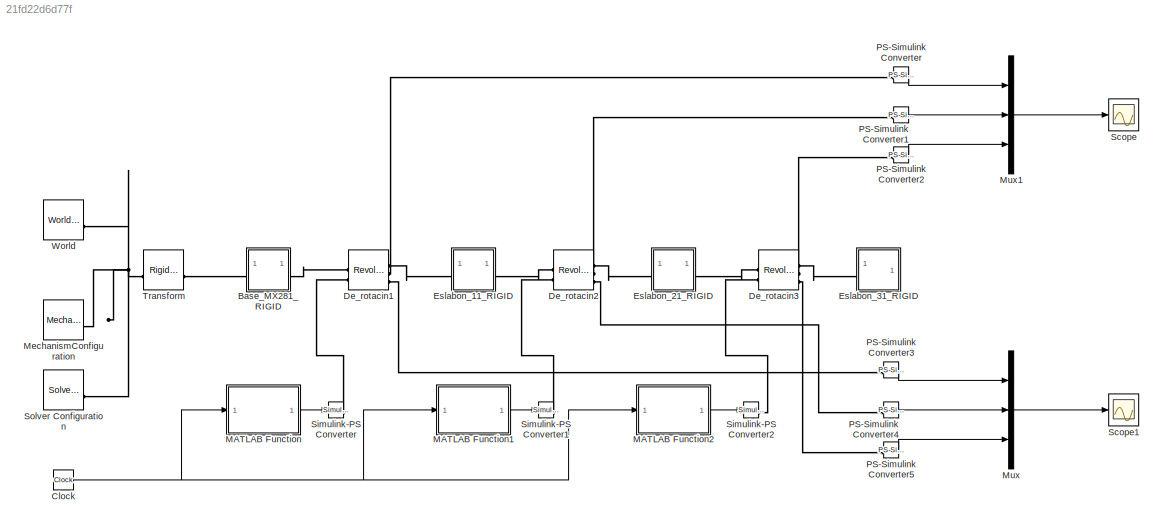
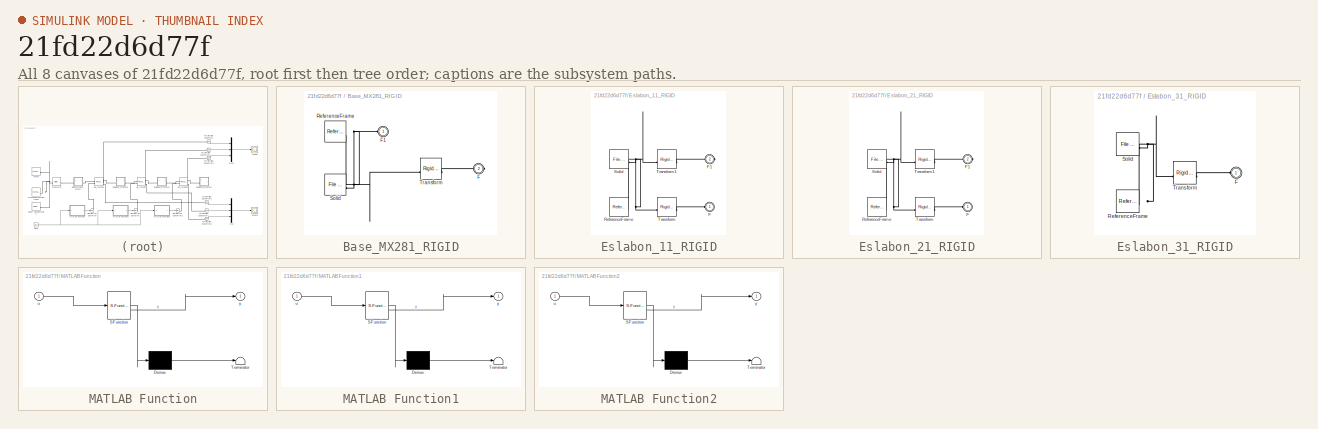
[diagram: thumbnail index - all 8 canvases of the model, root first then tree order]
MODEL slx_21fd22d6d77f
KIND model
CONFIG AbsTol = auto
CONFIG EnableMultiTasking = off
CONFIG FixedStep = auto
CONFIG MaxStep = auto
CONFIG MinStep = auto
CONFIG RelTol = 1e-3
CONFIG SampleTimeConstraint = Unconstrained
CONFIG SolverName = VariableStepAuto
CONFIG StartTime = 0.0
CONFIG StopTime = 10.0
WORKSPACE source: external: MATLAB File  (data not in archive)
BLOCK [SubSystem] Base_MX281_RIGID
BLOCK [PMIOPort] Base_MX281_RIGID/F
  Port = 2
  Side = Right
BLOCK [PMIOPort] Base_MX281_RIGID/F1
  Side = Left
BLOCK [Reference] Base_MX281_RIGID/ReferenceFrame  REF=sm_lib/Frames and
Transforms/Reference
Frame
  SourceBlock = sm_lib/Frames and\nTransforms/Reference\nFrame
  SourceType = Reference\nFrame
BLOCK [Reference] Base_MX281_RIGID/Solid  REF=sm_lib/Body Elements/File Solid
  SourceBlock = sm_lib/Body Elements/File Solid
  SourceType = File Solid
BLOCK [Reference] Base_MX281_RIGID/Transform  REF=sm_lib/Frames and
Transforms/Rigid
Transform
  SourceBlock = sm_lib/Frames and\nTransforms/Rigid\nTransform
  SourceType = Rigid\nTransform
BLOCK [Clock] Clock
BLOCK [Reference] De_rotacin1  REF=sm_lib/Joints/Revolute Joint
  SourceBlock = sm_lib/Joints/Revolute Joint
  SourceType = Revolute Joint
BLOCK [Reference] De_rotacin2  REF=sm_lib/Joints/Revolute Joint
  SourceBlock = sm_lib/Joints/Revolute Joint
  SourceType = Revolute Joint
BLOCK [Reference] De_rotacin3  REF=sm_lib/Joints/Revolute Joint
  SourceBlock = sm_lib/Joints/Revolute Joint
  SourceType = Revolute Joint
BLOCK [SubSystem] Eslabon_11_RIGID
BLOCK [PMIOPort] Eslabon_11_RIGID/F
  Side = Left
BLOCK [PMIOPort] Eslabon_11_RIGID/F1
  Port = 2
  Side = Right
BLOCK [Reference] Eslabon_11_RIGID/ReferenceFrame  REF=sm_lib/Frames and
Transforms/Reference
Frame
  SourceBlock = sm_lib/Frames and\nTransforms/Reference\nFrame
  SourceType = Reference\nFrame
BLOCK [Reference] Eslabon_11_RIGID/Solid  REF=sm_lib/Body Elements/File Solid
  SourceBlock = sm_lib/Body Elements/File Solid
  SourceType = File Solid
BLOCK [Reference] Eslabon_11_RIGID/Transform  REF=sm_lib/Frames and
Transforms/Rigid
Transform
  SourceBlock = sm_lib/Frames and\nTransforms/Rigid\nTransform
  SourceType = Rigid\nTransform
BLOCK [Reference] Eslabon_11_RIGID/Transform1  REF=sm_lib/Frames and
Transforms/Rigid
Transform
  SourceBlock = sm_lib/Frames and\nTransforms/Rigid\nTransform
  SourceType = Rigid\nTransform
BLOCK [SubSystem] Eslabon_21_RIGID
BLOCK [PMIOPort] Eslabon_21_RIGID/F
  Side = Left
BLOCK [PMIOPort] Eslabon_21_RIGID/F1
  Port = 2
  Side = Right
BLOCK [Reference] Eslabon_21_RIGID/ReferenceFrame  REF=sm_lib/Frames and
Transforms/Reference
Frame
  SourceBlock = sm_lib/Frames and\nTransforms/Reference\nFrame
  SourceType = Reference\nFrame
BLOCK [Reference] Eslabon_21_RIGID/Solid  REF=sm_lib/Body Elements/File Solid
  SourceBlock = sm_lib/Body Elements/File Solid
  SourceType = File Solid
BLOCK [Reference] Eslabon_21_RIGID/Transform  REF=sm_lib/Frames and
Transforms/Rigid
Transform
  SourceBlock = sm_lib/Frames and\nTransforms/Rigid\nTransform
  SourceType = Rigid\nTransform
BLOCK [Reference] Eslabon_21_RIGID/Transform1  REF=sm_lib/Frames and
Transforms/Rigid
Transform
  SourceBlock = sm_lib/Frames and\nTransforms/Rigid\nTransform
  SourceType = Rigid\nTransform
BLOCK [SubSystem] Eslabon_31_RIGID
BLOCK [PMIOPort] Eslabon_31_RIGID/F
  Side = Left
BLOCK [Reference] Eslabon_31_RIGID/ReferenceFrame  REF=sm_lib/Frames and
Transforms/Reference
Frame
  SourceBlock = sm_lib/Frames and\nTransforms/Reference\nFrame
  SourceType = Reference\nFrame
BLOCK [Reference] Eslabon_31_RIGID/Solid  REF=sm_lib/Body Elements/File Solid
  SourceBlock = sm_lib/Body Elements/File Solid
  SourceType = File Solid
BLOCK [Reference] Eslabon_31_RIGID/Transform  REF=sm_lib/Frames and
Transforms/Rigid
Transform
  SourceBlock = sm_lib/Frames and\nTransforms/Rigid\nTransform
  SourceType = Rigid\nTransform
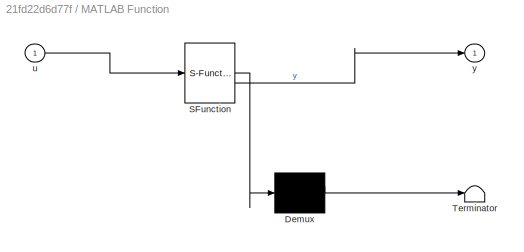
BLOCK [SubSystem] MATLAB Function
  ErrorFcn = Stateflow.Translate.translate
  PermitHierarchicalResolution = ExplicitOnly
  SFBlockType = MATLAB Function
  TreatAsAtomicUnit = on
BLOCK [Demux] MATLAB Function/ Demux 
  Outputs = 1
BLOCK [S-Function] MATLAB Function/ SFunction 
  EnableBusSupport = on
  FunctionName = sf_sfun
  PortCounts = [1 2]
  SFcnIsStateOwnerBlock = off
  SFunctionDeploymentMode = off
  Tag = Stateflow S-Function 2
BLOCK [Terminator] MATLAB Function/ Terminator 
BLOCK [Inport] MATLAB Function/u
BLOCK [Outport] MATLAB Function/y
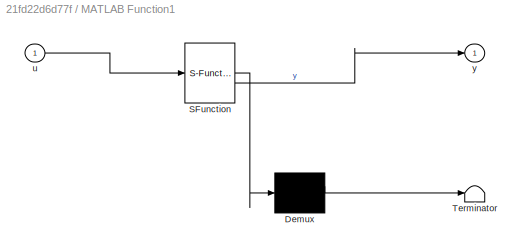
BLOCK [SubSystem] MATLAB Function1
  ErrorFcn = Stateflow.Translate.translate
  PermitHierarchicalResolution = ExplicitOnly
  SFBlockType = MATLAB Function
  TreatAsAtomicUnit = on
BLOCK [Demux] MATLAB Function1/ Demux 
  Outputs = 1
BLOCK [S-Function] MATLAB Function1/ SFunction 
  EnableBusSupport = on
  FunctionName = sf_sfun
  PortCounts = [1 2]
  SFcnIsStateOwnerBlock = off
  SFunctionDeploymentMode = off
  Tag = Stateflow S-Function 1
BLOCK [Terminator] MATLAB Function1/ Terminator 
BLOCK [Inport] MATLAB Function1/u
BLOCK [Outport] MATLAB Function1/y
BLOCK [SubSystem] MATLAB Function2
  ErrorFcn = Stateflow.Translate.translate
  PermitHierarchicalResolution = ExplicitOnly
  SFBlockType = MATLAB Function
  TreatAsAtomicUnit = on
BLOCK [Demux] MATLAB Function2/ Demux 
  Outputs = 1
BLOCK [S-Function] MATLAB Function2/ SFunction 
  EnableBusSupport = on
  FunctionName = sf_sfun
  PortCounts = [1 2]
  SFcnIsStateOwnerBlock = off
  SFunctionDeploymentMode = off
  Tag = Stateflow S-Function 3
BLOCK [Terminator] MATLAB Function2/ Terminator 
BLOCK [Inport] MATLAB Function2/u
BLOCK [Outport] MATLAB Function2/y
BLOCK [Reference] MechanismConfiguration  REF=sm_lib/Utilities/Mechanism
Configuration
  SourceBlock = sm_lib/Utilities/Mechanism\nConfiguration
  SourceType = Mechanism\nConfiguration
BLOCK [Mux] Mux
  DisplayOption = bar
  Inputs = 3
BLOCK [Mux] Mux1
  DisplayOption = bar
  Inputs = 3
BLOCK [Reference] PS-Simulink Converter  REF=nesl_utility/PS-Simulink
Converter
  SourceBlock = nesl_utility/PS-Simulink\nConverter
  SourceType = PS-Simulink\nConverter
BLOCK [Reference] PS-Simulink Converter1  REF=nesl_utility/PS-Simulink
Converter
  SourceBlock = nesl_utility/PS-Simulink\nConverter
  SourceType = PS-Simulink\nConverter
BLOCK [Reference] PS-Simulink Converter2  REF=nesl_utility/PS-Simulink
Converter
  SourceBlock = nesl_utility/PS-Simulink\nConverter
  SourceType = PS-Simulink\nConverter
BLOCK [Reference] PS-Simulink Converter3  REF=nesl_utility/PS-Simulink
Converter
  SourceBlock = nesl_utility/PS-Simulink\nConverter
  SourceType = PS-Simulink\nConverter
BLOCK [Reference] PS-Simulink Converter4  REF=nesl_utility/PS-Simulink
Converter
  SourceBlock = nesl_utility/PS-Simulink\nConverter
  SourceType = PS-Simulink\nConverter
BLOCK [Reference] PS-Simulink Converter5  REF=nesl_utility/PS-Simulink
Converter
  SourceBlock = nesl_utility/PS-Simulink\nConverter
  SourceType = PS-Simulink\nConverter
BLOCK [Scope] Scope
  Floating = off
  NumInputPorts = 1
  ScopeSpecificationString = Simulink.scopes.TimeScopeBlockCfg('CurrentConfiguration', extmgr.ConfigurationSet(extmgr.Configuration('Core','General UI',true),extmgr.Configuration('Core','Source UI',true),extmgr.Configuration('Sources','WiredSimulink',true),extmgr.Configuration('Visuals','Time Domain',true,'SerializedDisplays',{struct('MinYLimReal','-1.39948','MaxYLimReal','0.81022','YLabelReal','','MinYLimMag','0.00000','MaxY...<+2133ch>
BLOCK [Scope] Scope1
  Floating = off
  NumInputPorts = 1
  ScopeSpecificationString = Simulink.scopes.TimeScopeBlockCfg('CurrentConfiguration', extmgr.ConfigurationSet(extmgr.Configuration('Core','General UI',true),extmgr.Configuration('Core','Source UI',true),extmgr.Configuration('Sources','WiredSimulink',true,'DataLoggingVariableName','ScopeData1'),extmgr.Configuration('Visuals','Time Domain',true,'SerializedDisplays',{struct('MinYLimReal','-0.06639','MaxYLimReal','0.01541','YLab...<+2242ch>
BLOCK [Reference] Simulink-PS Converter  REF=nesl_utility/Simulink-PS
Converter
  SourceBlock = nesl_utility/Simulink-PS\nConverter
  SourceType = Simulink-PS\nConverter
BLOCK [Reference] Simulink-PS Converter1  REF=nesl_utility/Simulink-PS
Converter
  SourceBlock = nesl_utility/Simulink-PS\nConverter
  SourceType = Simulink-PS\nConverter
BLOCK [Reference] Simulink-PS Converter2  REF=nesl_utility/Simulink-PS
Converter
  SourceBlock = nesl_utility/Simulink-PS\nConverter
  SourceType = Simulink-PS\nConverter
BLOCK [Reference] Solver Configuration  REF=nesl_utility/Solver
Configuration
  SourceBlock = nesl_utility/Solver\nConfiguration
  SourceType = Solver\nConfiguration
BLOCK [Reference] Transform  REF=sm_lib/Frames and
Transforms/Rigid
Transform
  SourceBlock = sm_lib/Frames and\nTransforms/Rigid\nTransform
  SourceType = Rigid\nTransform
BLOCK [Reference] World  REF=sm_lib/Frames and
Transforms/World Frame
  SourceBlock = sm_lib/Frames and\nTransforms/World Frame
  SourceType = World Frame
NET Clock:1 -> MATLAB Function1:1, MATLAB Function2:1, MATLAB Function:1
LINE MATLAB Function1:1 -> Simulink-PS Converter1:1
LINE MATLAB Function2:1 -> Simulink-PS Converter2:1
LINE MATLAB Function:1 -> Simulink-PS Converter:1
LINE Mux1:1 -> Scope:1
LINE Mux:1 -> Scope1:1
LINE PS-Simulink Converter1:1 -> Mux1:2
LINE PS-Simulink Converter2:1 -> Mux1:3
LINE PS-Simulink Converter3:1 -> Mux:1
LINE PS-Simulink Converter4:1 -> Mux:2
LINE PS-Simulink Converter5:1 -> Mux:3
LINE PS-Simulink Converter:1 -> Mux1:1
PNET net1: Base_MX281_RIGID/F1:RConn1 -- Base_MX281_RIGID/ReferenceFrame:RConn1 -- Base_MX281_RIGID/Solid:RConn1 -- Base_MX281_RIGID/Transform:LConn1
PLINE Base_MX281_RIGID/F:RConn1 -- Base_MX281_RIGID/Transform:RConn1
PLINE Base_MX281_RIGID:LConn1 -- Transform:RConn1
PLINE Base_MX281_RIGID:RConn1 -- De_rotacin1:LConn1
PLINE De_rotacin1:LConn2 -- Simulink-PS Converter:RConn1
PLINE De_rotacin1:RConn1 -- Eslabon_11_RIGID:LConn1
PLINE De_rotacin1:RConn2 -- PS-Simulink Converter:LConn1
PLINE De_rotacin1:RConn3 -- PS-Simulink Converter3:LConn1
PLINE De_rotacin2:LConn1 -- Eslabon_11_RIGID:RConn1
PLINE De_rotacin2:LConn2 -- Simulink-PS Converter1:RConn1
PLINE De_rotacin2:RConn1 -- Eslabon_21_RIGID:LConn1
PLINE De_rotacin2:RConn2 -- PS-Simulink Converter1:LConn1
PLINE De_rotacin2:RConn3 -- PS-Simulink Converter4:LConn1
PLINE De_rotacin3:LConn1 -- Eslabon_21_RIGID:RConn1
PLINE De_rotacin3:LConn2 -- Simulink-PS Converter2:RConn1
PLINE De_rotacin3:RConn1 -- Eslabon_31_RIGID:LConn1
PLINE De_rotacin3:RConn2 -- PS-Simulink Converter2:LConn1
PLINE De_rotacin3:RConn3 -- PS-Simulink Converter5:LConn1
PLINE Eslabon_11_RIGID/F1:RConn1 -- Eslabon_11_RIGID/Transform1:RConn1
PLINE Eslabon_11_RIGID/F:RConn1 -- Eslabon_11_RIGID/Transform:RConn1
PNET net2: Eslabon_11_RIGID/ReferenceFrame:RConn1 -- Eslabon_11_RIGID/Solid:RConn1 -- Eslabon_11_RIGID/Transform1:LConn1 -- Eslabon_11_RIGID/Transform:LConn1
PLINE Eslabon_21_RIGID/F1:RConn1 -- Eslabon_21_RIGID/Transform1:RConn1
PLINE Eslabon_21_RIGID/F:RConn1 -- Eslabon_21_RIGID/Transform:RConn1
PNET net3: Eslabon_21_RIGID/ReferenceFrame:RConn1 -- Eslabon_21_RIGID/Solid:RConn1 -- Eslabon_21_RIGID/Transform1:LConn1 -- Eslabon_21_RIGID/Transform:LConn1
PLINE Eslabon_31_RIGID/F:RConn1 -- Eslabon_31_RIGID/Transform:RConn1
PNET net4: Eslabon_31_RIGID/ReferenceFrame:RConn1 -- Eslabon_31_RIGID/Solid:RConn1 -- Eslabon_31_RIGID/Transform:LConn1
PNET net5: MechanismConfiguration:RConn1 -- Solver Configuration:RConn1 -- Transform:LConn1 -- World:RConn1
note: NET lines group one-source signal fan-out (src -> all destinations, sorted); 1:1 wires keep LINE; PNET lines group multi-terminal physical nets as a canonical sorted terminal list (undirected conserving connections); 2-terminal nets keep the pairwise PLINE form
CHART MATLAB Function states=1 transitions=1
  STATE_LABEL 'eML_blk_kernel()'
  STATE_LABEL 'SCRIPT:\nfunction y = fcn(u)\n\nT = 10; %Tiempo total de la simulación\n\ntheta1_in = 0;\ntheta1_fin = 2*pi;\n\n\ny = -(theta1_in+((10/T^3)*u^3-(15/T^4)*u^4+(6/T^5)*u^5)*(theta1_fin-theta1_in));'
CHART MATLAB Function2 states=1 transitions=1
  STATE_LABEL 'eML_blk_kernel()'
  STATE_LABEL 'SCRIPT:\nfunction y = fcn(u)\n\nT = 10; %Tiempo total de la simulación\n\ntheta3_in = pi/2;\ntheta3_fin = pi/2;\n\n\ny = -(theta3_in+((10/T^3)*u^3-(15/T^4)*u^4+(6/T^5)*u^5)*(theta3_fin-theta3_in));\n'
CHART MATLAB Function1 states=1 transitions=1
  STATE_LABEL 'eML_blk_kernel()'
  STATE_LABEL 'SCRIPT:\nfunction y = fcn(u)\n\nT = 10; %Tiempo total de la simulación\n\ntheta2_in = 0;\ntheta2_fin = pi;\n\n\ny = theta2_in+((10/T^3)*u^3-(15/T^4)*u^4+(6/T^5)*u^5)*(theta2_fin-theta2_in);'
CHART  states=0 transitions=0
CHART  states=0 transitions=0
CHART  states=0 transitions=0
